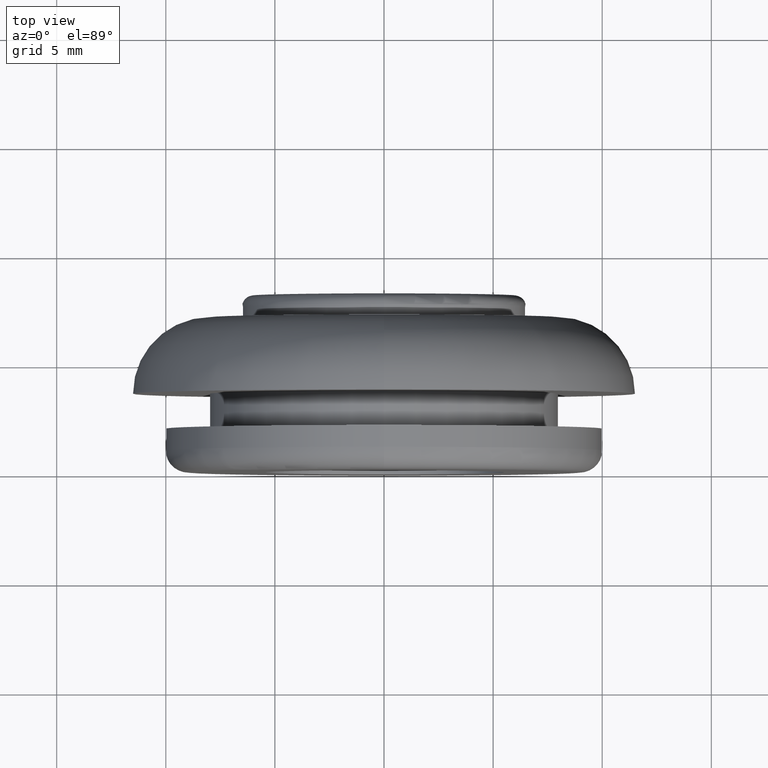
[diagram: clean part render]
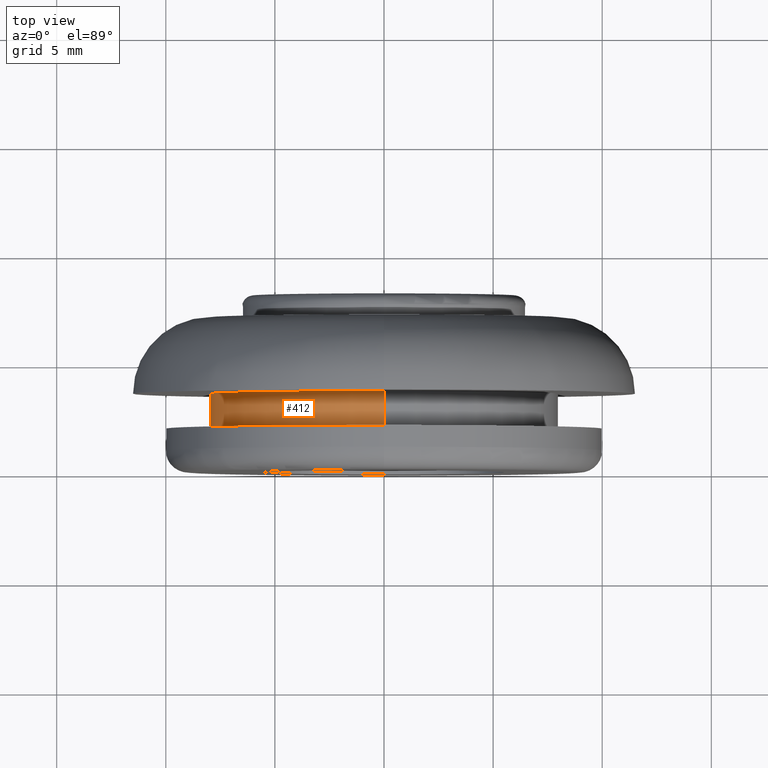
[diagram: same view with one face highlighted and labeled with its STEP entity id]
A machine part, top view. The second image highlights one B-rep face of the part: STEP entity #412.
In plain terms, the highlighted cylindrical surface (partial cylindrical patch) has radius 8 mm, axis along (0, -1, 0).
Its self-contained STEP definition (entity closure, byte-faithful):
#23 = CARTESIAN_POINT ( 'NONE',  ( 0.0000000000000000000, 0.0000000000000000000, -8.000000000000000000 ) ) ;
#39 = CARTESIAN_POINT ( 'NONE',  ( 0.0000000000000000000, 3.600000000000000100, -8.000000000000000000 ) ) ;
#49 = EDGE_CURVE ( 'NONE', #497, #312, #546, .T. ) ;
#93 = DIRECTION ( 'NONE',  ( 0.0000000000000000000, -1.000000000000000000, 0.0000000000000000000 ) ) ;
#105 = VECTOR ( 'NONE', #525, 1000.000000000000000 ) ;
#114 = AXIS2_PLACEMENT_3D ( 'NONE', #408, #93, #453 ) ;
#115 = EDGE_CURVE ( 'NONE', #312, #649, #158, .T. ) ;
#158 = CIRCLE ( 'NONE', #465, 8.000000000000000000 ) ;
#168 = CIRCLE ( 'NONE', #114, 8.000000000000000000 ) ;
#170 = EDGE_LOOP ( 'NONE', ( #295, #224, #201, #483 ) ) ;
#201 = ORIENTED_EDGE ( 'NONE', *, *, #437, .T. ) ;
#224 = ORIENTED_EDGE ( 'NONE', *, *, #573, .T. ) ;
#239 = CYLINDRICAL_SURFACE ( 'NONE', #291, 8.000000000000000000 ) ;
#266 = VECTOR ( 'NONE', #541, 1000.000000000000000 ) ;
#276 = CARTESIAN_POINT ( 'NONE',  ( 0.0000000000000000000, 0.0000000000000000000, -3.061515884555945100E-016 ) ) ;
#290 = CARTESIAN_POINT ( 'NONE',  ( 9.797174393178825700E-016, 2.000000000000000000, 8.000000000000000000 ) ) ;
#291 = AXIS2_PLACEMENT_3D ( 'NONE', #276, #327, #616 ) ;
#295 = ORIENTED_EDGE ( 'NONE', *, *, #49, .F. ) ;
#312 = VERTEX_POINT ( 'NONE', #290 ) ;
#327 = DIRECTION ( 'NONE',  ( 0.0000000000000000000, -1.000000000000000000, 0.0000000000000000000 ) ) ;
#346 = VERTEX_POINT ( 'NONE', #39 ) ;
#364 = CARTESIAN_POINT ( 'NONE',  ( 0.0000000000000000000, 2.000000000000000000, -3.061515884555945100E-016 ) ) ;
#398 = FACE_OUTER_BOUND ( 'NONE', #170, .T. ) ;
#408 = CARTESIAN_POINT ( 'NONE',  ( 0.0000000000000000000, 3.600000000000000100, -3.061515884555945100E-016 ) ) ;
#412 = ADVANCED_FACE ( 'NONE', ( #398 ), #239, .T. ) ;
#437 = EDGE_CURVE ( 'NONE', #346, #649, #508, .T. ) ;
#446 = CARTESIAN_POINT ( 'NONE',  ( 9.797174393178825700E-016, 3.600000000000000100, 8.000000000000000000 ) ) ;
#453 = DIRECTION ( 'NONE',  ( 0.0000000000000000000, 0.0000000000000000000, -1.000000000000000000 ) ) ;
#465 = AXIS2_PLACEMENT_3D ( 'NONE', #364, #650, #601 ) ;
#483 = ORIENTED_EDGE ( 'NONE', *, *, #115, .F. ) ;
#497 = VERTEX_POINT ( 'NONE', #446 ) ;
#508 = LINE ( 'NONE', #23, #105 ) ;
#525 = DIRECTION ( 'NONE',  ( 0.0000000000000000000, -1.000000000000000000, 0.0000000000000000000 ) ) ;
#541 = DIRECTION ( 'NONE',  ( 0.0000000000000000000, -1.000000000000000000, 0.0000000000000000000 ) ) ;
#546 = LINE ( 'NONE', #627, #266 ) ;
#561 = CARTESIAN_POINT ( 'NONE',  ( 0.0000000000000000000, 2.000000000000000000, -8.000000000000000000 ) ) ;
#573 = EDGE_CURVE ( 'NONE', #497, #346, #168, .T. ) ;
#601 = DIRECTION ( 'NONE',  ( 0.0000000000000000000, 0.0000000000000000000, -1.000000000000000000 ) ) ;
#616 = DIRECTION ( 'NONE',  ( 0.0000000000000000000, 0.0000000000000000000, -1.000000000000000000 ) ) ;
#627 = CARTESIAN_POINT ( 'NONE',  ( 9.797174393178825700E-016, 0.0000000000000000000, 8.000000000000000000 ) ) ;
#649 = VERTEX_POINT ( 'NONE', #561 ) ;
#650 = DIRECTION ( 'NONE',  ( 0.0000000000000000000, -1.000000000000000000, 0.0000000000000000000 ) ) ;